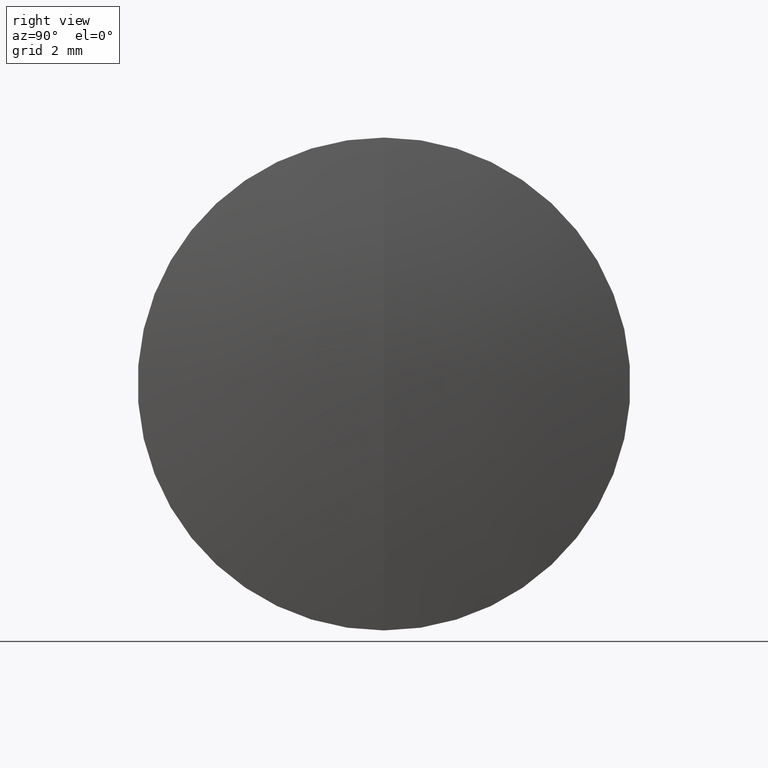
[diagram: clean part render]
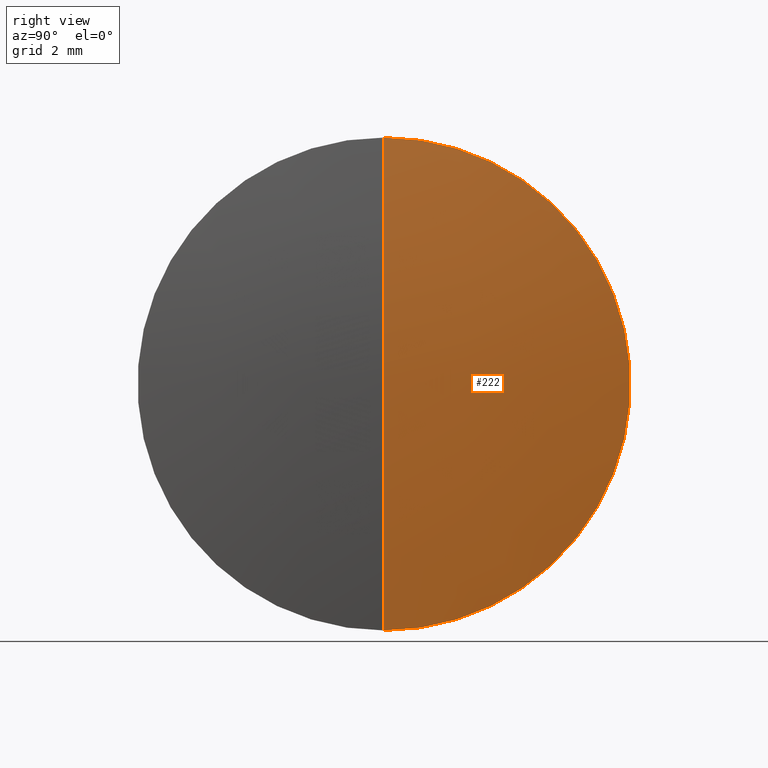
[diagram: same view with one face highlighted and labeled with its STEP entity id]
A machine part, right view. The second image highlights one B-rep face of the part: STEP entity #222.
In plain terms, the highlighted spherical surface has radius 52.241 mm.
Its self-contained STEP definition (entity closure, byte-faithful):
#2 = EDGE_CURVE ( 'NONE', #294, #319, #45, .T. ) ;
#7 = FACE_OUTER_BOUND ( 'NONE', #25, .T. ) ;
#10 = DIRECTION ( 'NONE',  ( 0.0000000000000000000, -1.000000000000000000, 0.0000000000000000000 ) ) ;
#13 = CARTESIAN_POINT ( 'NONE',  ( -25.30795652042687400, 0.0000000000000000000, 0.0000000000000000000 ) ) ;
#25 = EDGE_LOOP ( 'NONE', ( #259, #137, #132 ) ) ;
#28 = AXIS2_PLACEMENT_3D ( 'NONE', #43, #10, #183 ) ;
#32 = VERTEX_POINT ( 'NONE', #292 ) ;
#43 = CARTESIAN_POINT ( 'NONE',  ( -25.30795652042687400, 0.0000000000000000000, 0.0000000000000000000 ) ) ;
#45 = CIRCLE ( 'NONE', #136, 52.24099999999999300 ) ;
#50 = CIRCLE ( 'NONE', #179, 7.999999999999992900 ) ;
#53 = EDGE_CURVE ( 'NONE', #294, #32, #78, .T. ) ;
#57 = CARTESIAN_POINT ( 'NONE',  ( 26.93304347957312200, 0.0000000000000000000, 3.198838671712843800E-015 ) ) ;
#78 = CIRCLE ( 'NONE', #28, 52.24099999999999300 ) ;
#132 = ORIENTED_EDGE ( 'NONE', *, *, #191, .F. ) ;
#136 = AXIS2_PLACEMENT_3D ( 'NONE', #317, #289, #226 ) ;
#137 = ORIENTED_EDGE ( 'NONE', *, *, #2, .T. ) ;
#146 = CARTESIAN_POINT ( 'NONE',  ( 26.31686387635513600, 0.0000000000000000000, 0.0000000000000000000 ) ) ;
#164 = AXIS2_PLACEMENT_3D ( 'NONE', #13, #333, #171 ) ;
#171 = DIRECTION ( 'NONE',  ( 0.0000000000000000000, 0.0000000000000000000, 1.000000000000000000 ) ) ;
#179 = AXIS2_PLACEMENT_3D ( 'NONE', #146, #277, #268 ) ;
#183 = DIRECTION ( 'NONE',  ( 0.0000000000000000000, 0.0000000000000000000, -1.000000000000000000 ) ) ;
#191 = EDGE_CURVE ( 'NONE', #32, #319, #50, .T. ) ;
#222 = ADVANCED_FACE ( 'NONE', ( #7 ), #316, .T. ) ;
#226 = DIRECTION ( 'NONE',  ( 0.0000000000000000000, -1.224646799147353200E-016, 1.000000000000000000 ) ) ;
#259 = ORIENTED_EDGE ( 'NONE', *, *, #53, .F. ) ;
#268 = DIRECTION ( 'NONE',  ( 0.0000000000000000000, 0.0000000000000000000, 1.000000000000000000 ) ) ;
#277 = DIRECTION ( 'NONE',  ( -1.000000000000000000, -0.0000000000000000000, -0.0000000000000000000 ) ) ;
#289 = DIRECTION ( 'NONE',  ( -0.0000000000000000000, 1.000000000000000000, 1.224646799147353200E-016 ) ) ;
#292 = CARTESIAN_POINT ( 'NONE',  ( 26.31686387635513600, 0.0000000000000000000, 7.999999999999992900 ) ) ;
#294 = VERTEX_POINT ( 'NONE', #57 ) ;
#312 = CARTESIAN_POINT ( 'NONE',  ( 26.31686387635513600, 9.797174393178819700E-016, -7.999999999999992900 ) ) ;
#316 = SPHERICAL_SURFACE ( 'NONE', #164, 52.24099999999999300 ) ;
#317 = CARTESIAN_POINT ( 'NONE',  ( -25.30795652042687400, 0.0000000000000000000, 0.0000000000000000000 ) ) ;
#319 = VERTEX_POINT ( 'NONE', #312 ) ;
#333 = DIRECTION ( 'NONE',  ( 0.0000000000000000000, 1.000000000000000000, 0.0000000000000000000 ) ) ;